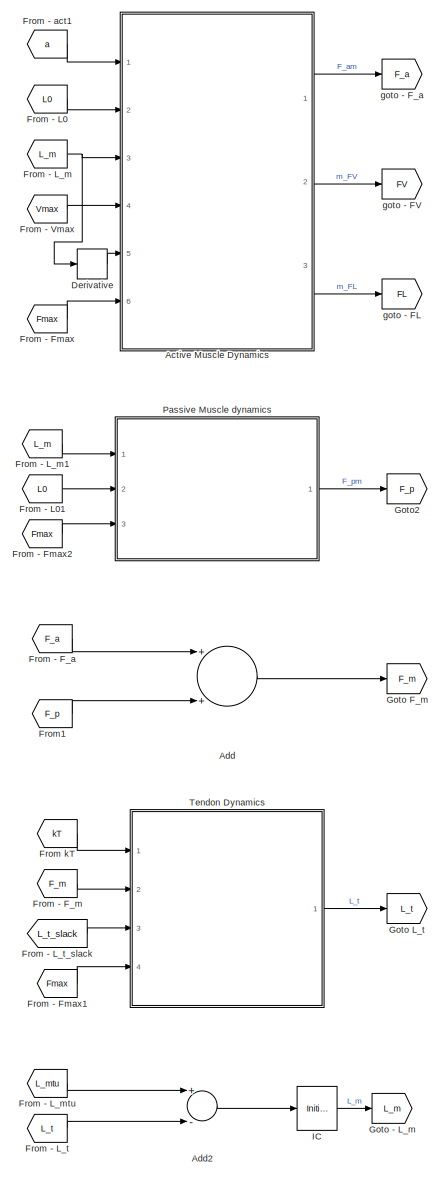
[diagram: root canvas - part 1/4, center side, full height]
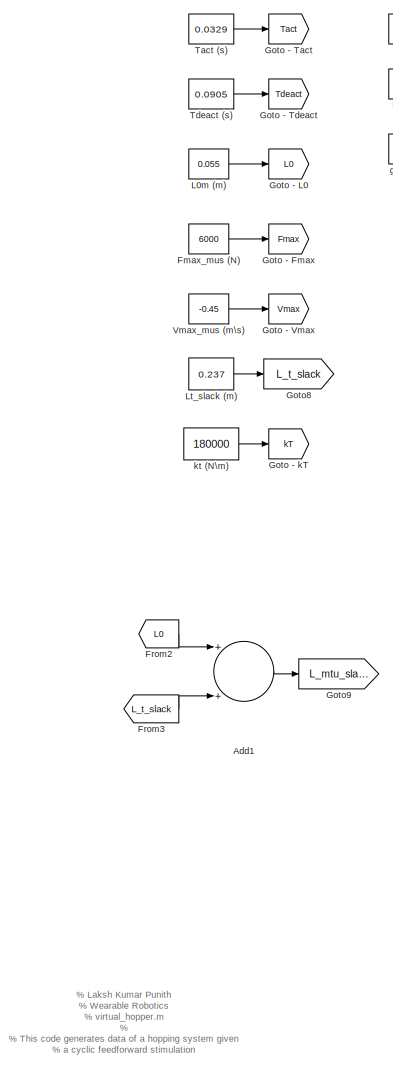
[diagram: root canvas - part 2/4, left side, full height]
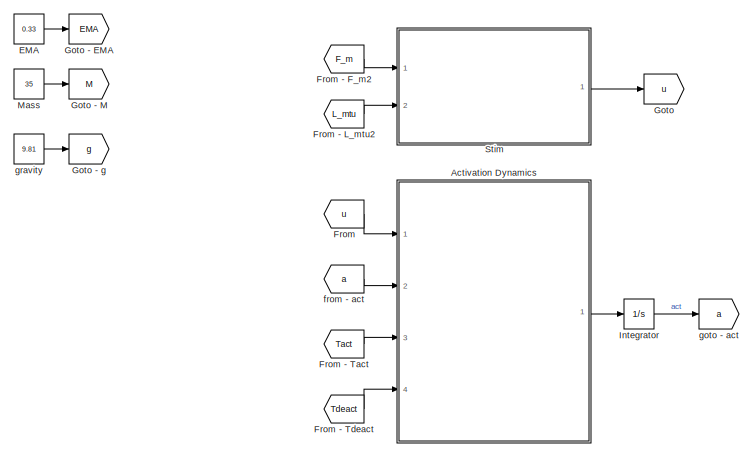
[diagram: root canvas - part 3/4, top left region]
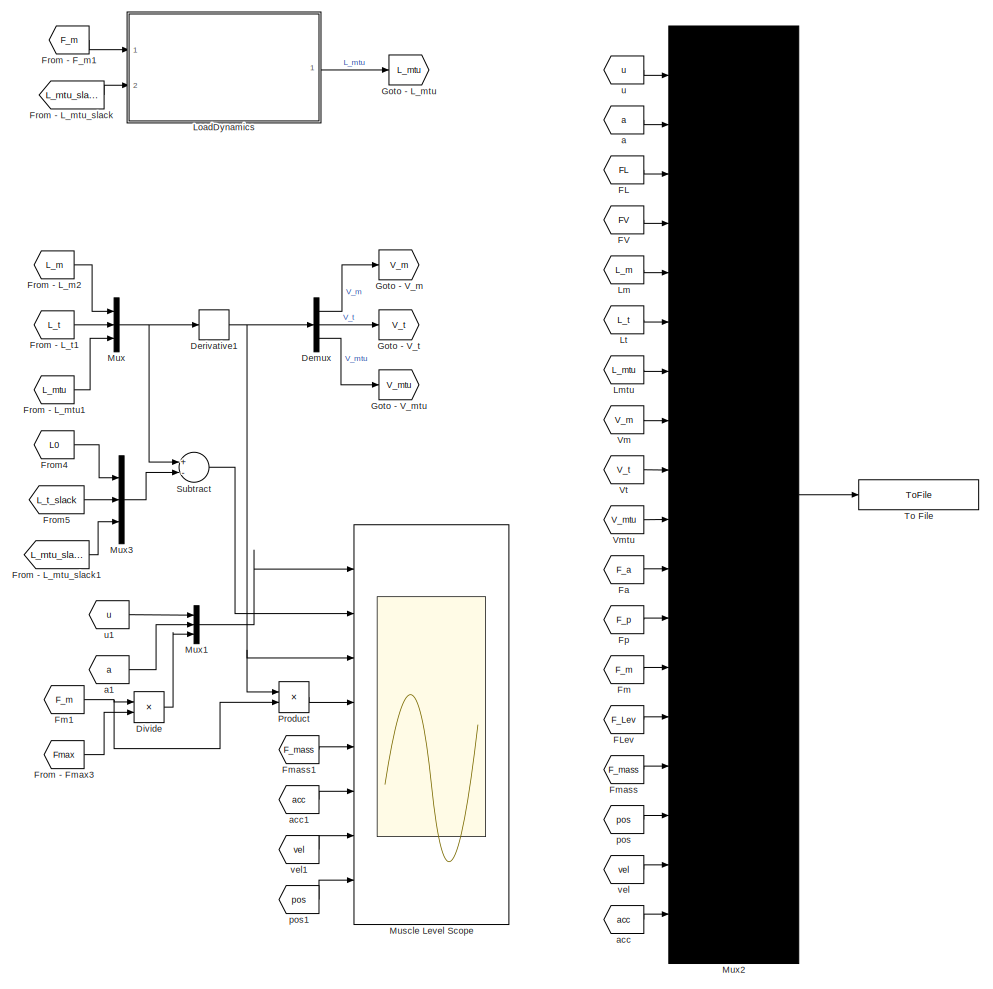
[diagram: root canvas - part 4/4, right side, full height]
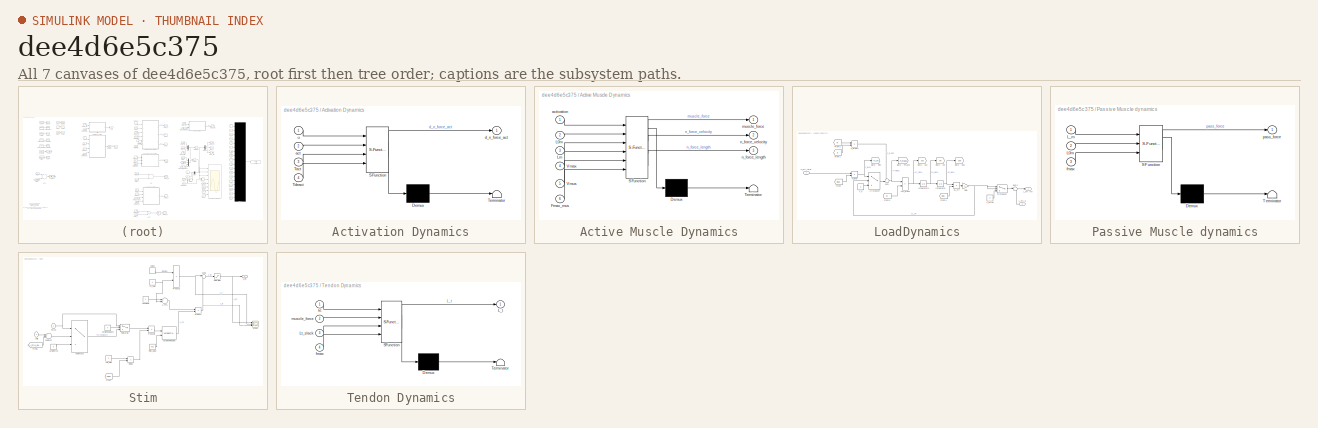
[diagram: thumbnail index - all 7 canvases of the model, root first then tree order]
MODEL slx_dee4d6e5c375
KIND model
CONFIG AbsTol = auto
CONFIG EnableMultiTasking = on
CONFIG FixedStep = 0.0005
CONFIG MaxStep = auto
CONFIG MinStep = auto
CONFIG RelTol = 1e-3
CONFIG SampleTimeConstraint = Unconstrained
CONFIG Solver = ode4
CONFIG SolverName = ode4
CONFIG StartTime = 0
CONFIG StopTime = 25
BLOCK [SubSystem] Activation Dynamics
  ErrorFcn = Stateflow.Translate.translate
  PermitHierarchicalResolution = ExplicitOnly
  Ports = [4, 1]
  RequestExecContextInheritance = off
  SFBlockType = MATLAB Function
  TreatAsAtomicUnit = on
  Variant = off
BLOCK [Demux] Activation Dynamics/ Demux 
  Outputs = 1
  Ports = [1, 1]
BLOCK [S-Function] Activation Dynamics/ SFunction 
  EnableBusSupport = on
  FunctionName = sf_sfun
  PortCounts = [4 2]
  Ports = [4, 2]
  SFcnIsStateOwnerBlock = off
  SFunctionDeploymentMode = off
  Tag = Stateflow S-Function virtual_hopper_feedback 4
BLOCK [Terminator] Activation Dynamics/ Terminator 
BLOCK [Inport] Activation Dynamics/Tact
  IconDisplay = Port number
  Port = 3
BLOCK [Inport] Activation Dynamics/Tdeact
  IconDisplay = Port number
  Port = 4
BLOCK [Inport] Activation Dynamics/act
  IconDisplay = Port number
  Port = 2
BLOCK [Outport] Activation Dynamics/d_n_force_act
  IconDisplay = Port number
BLOCK [Inport] Activation Dynamics/u
  IconDisplay = Port number
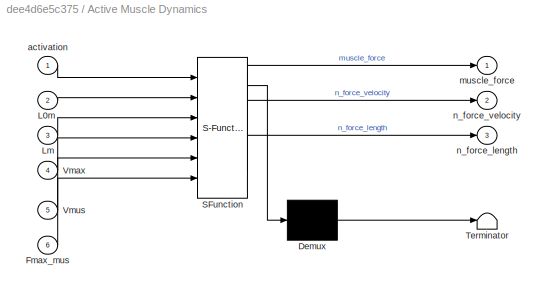
BLOCK [SubSystem] Active Muscle Dynamics
  ErrorFcn = Stateflow.Translate.translate
  PermitHierarchicalResolution = ExplicitOnly
  Ports = [6, 3]
  RequestExecContextInheritance = off
  SFBlockType = MATLAB Function
  Variant = off
BLOCK [Demux] Active Muscle Dynamics/ Demux 
  Outputs = 1
  Ports = [1, 1]
BLOCK [S-Function] Active Muscle Dynamics/ SFunction 
  EnableBusSupport = on
  FunctionName = sf_sfun
  PortCounts = [6 4]
  Ports = [6, 4]
  SFcnIsStateOwnerBlock = off
  SFunctionDeploymentMode = off
  Tag = Stateflow S-Function virtual_hopper_feedback 2
BLOCK [Terminator] Active Muscle Dynamics/ Terminator 
BLOCK [Inport] Active Muscle Dynamics/Fmax_mus
  IconDisplay = Port number
  Port = 6
BLOCK [Inport] Active Muscle Dynamics/L0m
  IconDisplay = Port number
  Port = 2
BLOCK [Inport] Active Muscle Dynamics/Lm
  IconDisplay = Port number
  Port = 3
BLOCK [Inport] Active Muscle Dynamics/Vmax
  IconDisplay = Port number
  Port = 4
BLOCK [Inport] Active Muscle Dynamics/Vmus
  IconDisplay = Port number
  Port = 5
BLOCK [Inport] Active Muscle Dynamics/activation
  IconDisplay = Port number
BLOCK [Outport] Active Muscle Dynamics/muscle_force
  IconDisplay = Port number
BLOCK [Outport] Active Muscle Dynamics/n_force_length
  IconDisplay = Port number
  Port = 3
BLOCK [Outport] Active Muscle Dynamics/n_force_velocity
  IconDisplay = Port number
  Port = 2
BLOCK [Sum] Add
  InputSameDT = off
  OutDataTypeStr = Inherit: Inherit via internal rule
  Ports = [2, 1]
  SaturateOnIntegerOverflow = off
BLOCK [Sum] Add1
  InputSameDT = off
  OutDataTypeStr = Inherit: Inherit via internal rule
  Ports = [2, 1]
  SaturateOnIntegerOverflow = off
BLOCK [Sum] Add2
  InputSameDT = off
  Inputs = +-
  OutDataTypeStr = Inherit: Inherit via internal rule
  Ports = [2, 1]
  SaturateOnIntegerOverflow = off
BLOCK [Demux] Demux
  DisplayOption = bar
  Outputs = 3
  Ports = [1, 3]
BLOCK [Derivative] Derivative
BLOCK [Derivative] Derivative1
BLOCK [Product] Divide
  InputSameDT = off
  Inputs = */
  OutDataTypeStr = Inherit: Inherit via internal rule
  Ports = [2, 1]
  RndMeth = Floor
  SaturateOnIntegerOverflow = off
BLOCK [Constant] EMA
  Value = 0.33
BLOCK [From] FL
  GotoTag = FL
BLOCK [From] FLev
  GotoTag = F_Lev
  TagVisibility = global
BLOCK [From] FV
  GotoTag = FV
BLOCK [From] Fa
  GotoTag = F_a
BLOCK [From] Fm
  GotoTag = F_m
BLOCK [From] Fm1
  GotoTag = F_m
BLOCK [From] Fmass
  GotoTag = F_mass
  TagVisibility = global
BLOCK [From] Fmass1
  GotoTag = F_mass
  TagVisibility = global
BLOCK [Constant] Fmax_mus (N)
  Value = 6000
BLOCK [From] Fp
  GotoTag = F_p
BLOCK [From] From
  GotoTag = u
BLOCK [From] From - F_a
  GotoTag = F_a
BLOCK [From] From - F_m
  GotoTag = F_m
BLOCK [From] From - F_m1
  GotoTag = F_m
BLOCK [From] From - F_m2
  GotoTag = F_m
BLOCK [From] From - Fmax
  GotoTag = Fmax
  TagVisibility = global
BLOCK [From] From - Fmax1
  GotoTag = Fmax
  TagVisibility = global
BLOCK [From] From - Fmax2
  GotoTag = Fmax
  TagVisibility = global
BLOCK [From] From - Fmax3
  GotoTag = Fmax
  TagVisibility = global
BLOCK [From] From - L0
  GotoTag = L0
  TagVisibility = global
BLOCK [From] From - L01
  GotoTag = L0
  TagVisibility = global
BLOCK [From] From - L_m
  GotoTag = L_m
BLOCK [From] From - L_m1
  GotoTag = L_m
BLOCK [From] From - L_m2
  GotoTag = L_m
BLOCK [From] From - L_mtu
  GotoTag = L_mtu
BLOCK [From] From - L_mtu1
  GotoTag = L_mtu
BLOCK [From] From - L_mtu2
  GotoTag = L_mtu
BLOCK [From] From - L_mtu_slack
  GotoTag = L_mtu_slack
  TagVisibility = global
BLOCK [From] From - L_mtu_slack1
  GotoTag = L_mtu_slack
  TagVisibility = global
BLOCK [From] From - L_t
  GotoTag = L_t
BLOCK [From] From - L_t1
  GotoTag = L_t
BLOCK [From] From - L_t_slack
  GotoTag = L_t_slack
  TagVisibility = global
BLOCK [From] From - Tact
  GotoTag = Tact
  TagVisibility = global
BLOCK [From] From - Tdeact
  GotoTag = Tdeact
  TagVisibility = global
BLOCK [From] From - Vmax
  GotoTag = Vmax
  TagVisibility = global
BLOCK [From] From - act1
  GotoTag = a
BLOCK [From] From kT
  GotoTag = kT
  TagVisibility = global
BLOCK [From] From1
  GotoTag = F_p
BLOCK [From] From2
  GotoTag = L0
  TagVisibility = global
BLOCK [From] From3
  GotoTag = L_t_slack
  TagVisibility = global
BLOCK [From] From4
  GotoTag = L0
  TagVisibility = global
BLOCK [From] From5
  GotoTag = L_t_slack
  TagVisibility = global
BLOCK [Goto] Goto
  GotoTag = u
BLOCK [Goto] Goto - EMA
  GotoTag = EMA
  TagVisibility = global
BLOCK [Goto] Goto - Fmax
  GotoTag = Fmax
  TagVisibility = global
BLOCK [Goto] Goto - L0
  GotoTag = L0
  TagVisibility = global
BLOCK [Goto] Goto - L_m
  GotoTag = L_m
BLOCK [Goto] Goto - L_mtu
  GotoTag = L_mtu
BLOCK [Goto] Goto - M
  GotoTag = M
  TagVisibility = global
BLOCK [Goto] Goto - Tact
  GotoTag = Tact
  TagVisibility = global
BLOCK [Goto] Goto - Tdeact
  GotoTag = Tdeact
  TagVisibility = global
BLOCK [Goto] Goto - V_m
  GotoTag = V_m
BLOCK [Goto] Goto - V_mtu
  GotoTag = V_mtu
BLOCK [Goto] Goto - V_t
  GotoTag = V_t
BLOCK [Goto] Goto - Vmax
  GotoTag = Vmax
  TagVisibility = global
BLOCK [Goto] Goto - g
  GotoTag = g
  TagVisibility = global
BLOCK [Goto] Goto - kT
  GotoTag = kT
  TagVisibility = global
BLOCK [Goto] Goto F_m
  GotoTag = F_m
BLOCK [Goto] Goto L_t
  GotoTag = L_t
BLOCK [Goto] Goto2
  GotoTag = F_p
BLOCK [Goto] Goto8
  GotoTag = L_t_slack
  TagVisibility = global
BLOCK [Goto] Goto9
  GotoTag = L_mtu_slack
  TagVisibility = global
BLOCK [InitialCondition] IC
  Value = 0.05
BLOCK [Integrator] Integrator
  Ports = [1, 1]
BLOCK [Constant] L0m (m)
  Value = 0.055
BLOCK [From] Lm
  GotoTag = L_m
BLOCK [From] Lmtu
  GotoTag = L_mtu
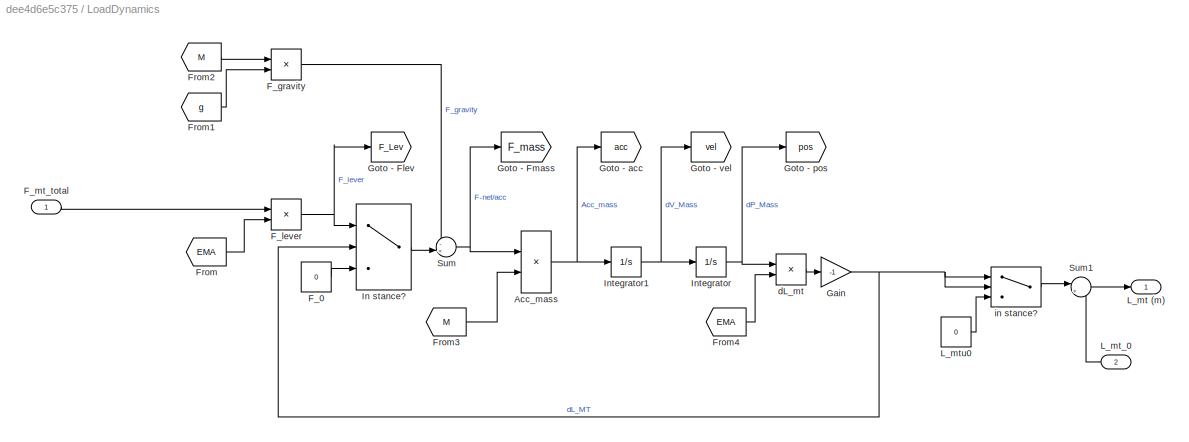
BLOCK [SubSystem] LoadDynamics
  Ports = [2, 1]
  RequestExecContextInheritance = off
  Variant = off
BLOCK [Product] LoadDynamics/Acc_mass
  InputSameDT = off
  Inputs = */
  OutDataTypeStr = Inherit: Inherit via internal rule
  Ports = [2, 1]
  RndMeth = Floor
  SaturateOnIntegerOverflow = off
BLOCK [Constant] LoadDynamics/F_0
  Value = 0
BLOCK [Product] LoadDynamics/F_gravity
  InputSameDT = off
  OutDataTypeStr = Inherit: Inherit via internal rule
  Ports = [2, 1]
  SaturateOnIntegerOverflow = off
BLOCK [Product] LoadDynamics/F_lever
  InputSameDT = off
  OutDataTypeStr = Inherit: Inherit via internal rule
  Ports = [2, 1]
  SaturateOnIntegerOverflow = off
BLOCK [Inport] LoadDynamics/F_mt_total
  IconDisplay = Port number
BLOCK [From] LoadDynamics/From
  GotoTag = EMA
  TagVisibility = global
BLOCK [From] LoadDynamics/From1
  GotoTag = g
  TagVisibility = global
BLOCK [From] LoadDynamics/From2
  GotoTag = M
  TagVisibility = global
BLOCK [From] LoadDynamics/From3
  GotoTag = M
  TagVisibility = global
BLOCK [From] LoadDynamics/From4
  GotoTag = EMA
  TagVisibility = global
BLOCK [Gain] LoadDynamics/Gain
  Gain = -1
  OutDataTypeStr = Inherit: Inherit via internal rule
  ParamDataTypeStr = Inherit: Inherit via internal rule
  SaturateOnIntegerOverflow = off
BLOCK [Goto] LoadDynamics/Goto - Flev
  GotoTag = F_Lev
  TagVisibility = global
BLOCK [Goto] LoadDynamics/Goto - Fmass
  GotoTag = F_mass
  TagVisibility = global
BLOCK [Goto] LoadDynamics/Goto - acc
  GotoTag = acc
  TagVisibility = global
BLOCK [Goto] LoadDynamics/Goto - pos
  GotoTag = pos
  TagVisibility = global
BLOCK [Goto] LoadDynamics/Goto - vel
  GotoTag = vel
  TagVisibility = global
BLOCK [Switch] LoadDynamics/In stance?
  InputSameDT = off
  SaturateOnIntegerOverflow = off
BLOCK [Integrator] LoadDynamics/Integrator
  InitialCondition = 0.05
  Ports = [1, 1]
BLOCK [Integrator] LoadDynamics/Integrator1
  Ports = [1, 1]
BLOCK [Outport] LoadDynamics/L_mt (m)
  IconDisplay = Port number
BLOCK [Inport] LoadDynamics/L_mt_0
  IconDisplay = Port number
  Port = 2
BLOCK [Constant] LoadDynamics/L_mtu0
  Value = 0
BLOCK [Sum] LoadDynamics/Sum
  IconShape = round
  InputSameDT = off
  Inputs = -+|
  OutDataTypeStr = Inherit: Inherit via internal rule
  Ports = [2, 1]
  SaturateOnIntegerOverflow = off
BLOCK [Sum] LoadDynamics/Sum1
  IconShape = round
  InputSameDT = off
  Inputs = |++
  OutDataTypeStr = Inherit: Inherit via internal rule
  Ports = [2, 1]
  SaturateOnIntegerOverflow = off
BLOCK [Product] LoadDynamics/dL_mt
  InputSameDT = off
  OutDataTypeStr = Inherit: Inherit via internal rule
  Ports = [2, 1]
  SaturateOnIntegerOverflow = off
BLOCK [Switch] LoadDynamics/in stance? 
  InputSameDT = off
  SaturateOnIntegerOverflow = off
BLOCK [From] Lt
  GotoTag = L_t
BLOCK [Constant] Lt_slack (m)
  Value = 0.237
BLOCK [Constant] Mass
  Value = 35
BLOCK [Scope] Muscle Level Scope
  NumInputPorts = 8
  Ports = [8]
  ScopeSpecificationString = Simulink.scopes.TimeScopeBlockCfg('CurrentConfiguration', extmgr.ConfigurationSet(extmgr.Configuration('Core','General UI',true),extmgr.Configuration('Core','Source UI',true),extmgr.Configuration('Sources','WiredSimulink',true),extmgr.Configuration('Visuals','Time Domain',true,'SerializedDisplays',{struct('MinYLimReal','-0.08693','MaxYLimReal','0.78236','YLabelReal','','MinYLimMag','0.00000','MaxY...<+7493ch>
BLOCK [Mux] Mux
  DisplayOption = bar
  Inputs = 3
  Ports = [3, 1]
BLOCK [Mux] Mux1
  DisplayOption = bar
  Inputs = 3
  Ports = [3, 1]
BLOCK [Mux] Mux2
  DisplayOption = signals
  Inputs = 18
  Ports = [18, 1]
BLOCK [Mux] Mux3
  DisplayOption = bar
  Inputs = 3
  Ports = [3, 1]
BLOCK [SubSystem] Passive Muscle dynamics
  ErrorFcn = Stateflow.Translate.translate
  PermitHierarchicalResolution = ExplicitOnly
  Ports = [3, 1]
  RequestExecContextInheritance = off
  SFBlockType = MATLAB Function
  Variant = off
BLOCK [Demux] Passive Muscle dynamics/ Demux 
  Outputs = 1
  Ports = [1, 1]
BLOCK [S-Function] Passive Muscle dynamics/ SFunction 
  EnableBusSupport = on
  FunctionName = sf_sfun
  PortCounts = [3 2]
  Ports = [3, 2]
  SFcnIsStateOwnerBlock = off
  SFunctionDeploymentMode = off
  Tag = Stateflow S-Function virtual_hopper_feedback 5
BLOCK [Terminator] Passive Muscle dynamics/ Terminator 
BLOCK [Inport] Passive Muscle dynamics/L0m
  IconDisplay = Port number
  Port = 2
BLOCK [Inport] Passive Muscle dynamics/L_m
  IconDisplay = Port number
BLOCK [Inport] Passive Muscle dynamics/fmax
  IconDisplay = Port number
  Port = 3
BLOCK [Outport] Passive Muscle dynamics/pass_force
  IconDisplay = Port number
BLOCK [Product] Product
  InputSameDT = off
  OutDataTypeStr = Inherit: Inherit via internal rule
  Ports = [2, 1]
  RndMeth = Floor
  SaturateOnIntegerOverflow = off
BLOCK [SubSystem] Stim
  Ports = [2, 1]
  RequestExecContextInheritance = off
  Variant = off
BLOCK [Sum] Stim/1 - FF%
  InputSameDT = off
  Inputs = +-
  OutDataTypeStr = Inherit: Inherit via internal rule
  Ports = [2, 1]
  SaturateOnIntegerOverflow = off
BLOCK [Constant] Stim/Aerial Feedback
  Value = 0
BLOCK [Constant] Stim/Aerial Force
  Value = 0
BLOCK [Constant] Stim/Constant1
BLOCK [Product] Stim/Divide
  InputSameDT = off
  Inputs = */
  OutDataTypeStr = Inherit: Inherit via internal rule
  Ports = [2, 1]
  RndMeth = Floor
  SaturateOnIntegerOverflow = off
BLOCK [Switch] Stim/FB in Aerial
  Criteria = u2 > Threshold
  InputSameDT = off
  SaturateOnIntegerOverflow = off
BLOCK [Constant] Stim/FB_Gain
  Value = 0
BLOCK [Constant] Stim/FF_Gain
BLOCK [Inport] Stim/Force
  IconDisplay = Port number
BLOCK [From] Stim/From
  GotoTag = Fmax
  TagVisibility = global
BLOCK [From] Stim/From1
  GotoTag = L_mtu_slack
  TagVisibility = global
BLOCK [Switch] Stim/In stance? 2
  Criteria = u2 > Threshold
  InputSameDT = off
  SaturateOnIntegerOverflow = off
BLOCK [Inport] Stim/Lmtu
  IconDisplay = Port number
  Port = 2
BLOCK [Product] Stim/Product
  InputSameDT = off
  OutDataTypeStr = Inherit: Inherit via internal rule
  Ports = [2, 1]
  RndMeth = Floor
  SaturateOnIntegerOverflow = off
BLOCK [Product] Stim/Product2
  InputSameDT = off
  OutDataTypeStr = Inherit: Inherit via internal rule
  Ports = [2, 1]
  RndMeth = Floor
  SaturateOnIntegerOverflow = off
BLOCK [Product] Stim/Product3
  InputSameDT = off
  OutDataTypeStr = Inherit: Inherit via internal rule
  Ports = [2, 1]
  RndMeth = Floor
  SaturateOnIntegerOverflow = off
BLOCK [Saturate] Stim/Saturation
  InputPortMap = u0
  LowerLimit = 0
  Ports = [1, 1]
  UpperLimit = 1
BLOCK [Scope] Stim/Scope
  NumInputPorts = 3
  Ports = [3]
  ScopeSpecificationString = Simulink.scopes.TimeScopeBlockCfg('CurrentConfiguration', extmgr.ConfigurationSet(extmgr.Configuration('Core','General UI',true),extmgr.Configuration('Core','Source UI',true),extmgr.Configuration('Sources','WiredSimulink',true,'DataLoggingVariableName','ScopeData1'),extmgr.Configuration('Visuals','Time Domain',true,'SerializedDisplays',{struct('MinYLimReal','-0.125','MaxYLimReal','1.125','YLabelRe...<+2738ch>
BLOCK [Sum] Stim/Subtract
  InputSameDT = off
  Inputs = +-
  OutDataTypeStr = Inherit: Inherit via internal rule
  Ports = [2, 1]
  SaturateOnIntegerOverflow = off
BLOCK [Sum] Stim/Sum1
  IconShape = round
  InputSameDT = off
  Inputs = |++
  OutDataTypeStr = Inherit: Inherit via internal rule
  Ports = [2, 1]
  SaturateOnIntegerOverflow = off
BLOCK [Constant] Stim/Time_delay
  Value = 0.02
BLOCK [VariableTransportDelay] Stim/Variable Time Delay
  MaximumDelay = 10
  MaximumPoints = 40960
  Ports = [2, 1]
BLOCK [DiscretePulseGenerator] Stim/pulse
  Period = 0.4
  PhaseDelay = 0.1
  Ports = [0, 1]
  PulseType = Time based
  PulseWidth = 10
BLOCK [Outport] Stim/u_tot
  IconDisplay = Port number
BLOCK [Sum] Subtract
  InputSameDT = off
  Inputs = +-
  OutDataTypeStr = Inherit: Inherit via internal rule
  Ports = [2, 1]
  SaturateOnIntegerOverflow = off
BLOCK [Constant] Tact (s)
  Value = 0.0329
  VectorParams1D = off
BLOCK [Constant] Tdeact (s)
  Value = 0.0905
BLOCK [SubSystem] Tendon Dynamics
  ErrorFcn = Stateflow.Translate.translate
  PermitHierarchicalResolution = ExplicitOnly
  Ports = [4, 1]
  RequestExecContextInheritance = off
  SFBlockType = MATLAB Function
  Variant = off
BLOCK [Demux] Tendon Dynamics/ Demux 
  Outputs = 1
  Ports = [1, 1]
BLOCK [S-Function] Tendon Dynamics/ SFunction 
  EnableBusSupport = on
  FunctionName = sf_sfun
  PortCounts = [4 2]
  Ports = [4, 2]
  SFcnIsStateOwnerBlock = off
  SFunctionDeploymentMode = off
  Tag = Stateflow S-Function virtual_hopper_feedback 3
BLOCK [Terminator] Tendon Dynamics/ Terminator 
BLOCK [Outport] Tendon Dynamics/L_t
  IconDisplay = Port number
BLOCK [Inport] Tendon Dynamics/Lt_slack
  IconDisplay = Port number
  Port = 3
BLOCK [Inport] Tendon Dynamics/fmax
  IconDisplay = Port number
  Port = 4
BLOCK [Inport] Tendon Dynamics/kt
  IconDisplay = Port number
BLOCK [Inport] Tendon Dynamics/muscle_force
  IconDisplay = Port number
  Port = 2
BLOCK [ToFile] To File
  Filename = signal_data_output
  MatrixName = data
  Ports = [1]
  SaveFormat = Timeseries
BLOCK [From] Vm
  GotoTag = V_m
BLOCK [Constant] Vmax_mus (m\s)
  Value = -0.45
BLOCK [From] Vmtu
  GotoTag = V_mtu
BLOCK [From] Vt
  GotoTag = V_t
BLOCK [From] a
  GotoTag = a
BLOCK [From] a1
  GotoTag = a
BLOCK [From] acc
  GotoTag = acc
  TagVisibility = global
BLOCK [From] acc1
  GotoTag = acc
  TagVisibility = global
BLOCK [From] from - act
  GotoTag = a
BLOCK [Goto] goto - FL
  GotoTag = FL
BLOCK [Goto] goto - FV
  GotoTag = FV
BLOCK [Goto] goto - F_a
  GotoTag = F_a
BLOCK [Goto] goto - act
  GotoTag = a
BLOCK [Constant] gravity
  Value = 9.81
BLOCK [Constant] kt (N\m)
  Value = 180000
BLOCK [From] pos
  GotoTag = pos
  TagVisibility = global
BLOCK [From] pos1
  GotoTag = pos
  TagVisibility = global
BLOCK [From] u
  GotoTag = u
BLOCK [From] u1
  GotoTag = u
BLOCK [From] vel
  GotoTag = vel
  TagVisibility = global
BLOCK [From] vel1
  GotoTag = vel
  TagVisibility = global
ANNOTATION (root): % Laksh Kumar Punith % Wearable Robotics % virtual_hopper.m % % This code generates data of a hopping system given % a cyclic feedforward stimulation
LINE Activation Dynamics:1 -> Integrator:1
LINE Active Muscle Dynamics:1 -> goto - F_a:1
LINE Active Muscle Dynamics:2 -> goto - FV:1
LINE Active Muscle Dynamics:3 -> goto - FL:1
LINE Add1:1 -> Goto9:1
LINE Add2:1 -> IC:1
LINE Add:1 -> Goto F_m:1
LINE Demux:1 -> Goto - V_m:1
LINE Demux:2 -> Goto - V_t:1
LINE Demux:3 -> Goto - V_mtu:1
NET Derivative1:1 -> Demux:1, Muscle Level Scope:3, Product:1
LINE Derivative:1 -> Active Muscle Dynamics:5
LINE Divide:1 -> Mux1:3
LINE EMA:1 -> Goto - EMA:1
LINE FL:1 -> Mux2:3
LINE FLev:1 -> Mux2:14
LINE FV:1 -> Mux2:4
LINE Fa:1 -> Mux2:11
NET Fm1:1 -> Divide:1, Product:2
LINE Fm:1 -> Mux2:13
LINE Fmass1:1 -> Muscle Level Scope:5
LINE Fmass:1 -> Mux2:15
LINE Fmax_mus (N):1 -> Goto - Fmax:1
LINE Fp:1 -> Mux2:12
LINE From - F_a:1 -> Add:1
LINE From - F_m1:1 -> LoadDynamics:1
LINE From - F_m2:1 -> Stim:1
LINE From - F_m:1 -> Tendon Dynamics:2
LINE From - Fmax1:1 -> Tendon Dynamics:4
LINE From - Fmax2:1 -> Passive Muscle dynamics:3
LINE From - Fmax3:1 -> Divide:2
LINE From - Fmax:1 -> Active Muscle Dynamics:6
LINE From - L01:1 -> Passive Muscle dynamics:2
LINE From - L0:1 -> Active Muscle Dynamics:2
LINE From - L_m1:1 -> Passive Muscle dynamics:1
LINE From - L_m2:1 -> Mux:1
NET From - L_m:1 -> Active Muscle Dynamics:3, Derivative:1
LINE From - L_mtu1:1 -> Mux:3
LINE From - L_mtu2:1 -> Stim:2
LINE From - L_mtu:1 -> Add2:1
LINE From - L_mtu_slack1:1 -> Mux3:3
LINE From - L_mtu_slack:1 -> LoadDynamics:2
LINE From - L_t1:1 -> Mux:2
LINE From - L_t:1 -> Add2:2
LINE From - L_t_slack:1 -> Tendon Dynamics:3
LINE From - Tact:1 -> Activation Dynamics:3
LINE From - Tdeact:1 -> Activation Dynamics:4
LINE From - Vmax:1 -> Active Muscle Dynamics:4
LINE From - act1:1 -> Active Muscle Dynamics:1
LINE From kT:1 -> Tendon Dynamics:1
LINE From1:1 -> Add:2
LINE From2:1 -> Add1:1
LINE From3:1 -> Add1:2
LINE From4:1 -> Mux3:1
LINE From5:1 -> Mux3:2
LINE From:1 -> Activation Dynamics:1
LINE IC:1 -> Goto - L_m:1
LINE Integrator:1 -> goto - act:1
LINE L0m (m):1 -> Goto - L0:1
LINE Lm:1 -> Mux2:5
LINE Lmtu:1 -> Mux2:7
NET LoadDynamics/Acc_mass:1 -> LoadDynamics/Goto - acc:1, LoadDynamics/Integrator1:1
LINE LoadDynamics/F_0:1 -> LoadDynamics/In stance?:3
LINE LoadDynamics/F_gravity:1 -> LoadDynamics/Sum:1
NET LoadDynamics/F_lever:1 -> LoadDynamics/Goto - Flev:1, LoadDynamics/In stance?:1
LINE LoadDynamics/F_mt_total:1 -> LoadDynamics/F_lever:1
LINE LoadDynamics/From1:1 -> LoadDynamics/F_gravity:2
LINE LoadDynamics/From2:1 -> LoadDynamics/F_gravity:1
LINE LoadDynamics/From3:1 -> LoadDynamics/Acc_mass:2
LINE LoadDynamics/From4:1 -> LoadDynamics/dL_mt:2
LINE LoadDynamics/From:1 -> LoadDynamics/F_lever:2
NET LoadDynamics/Gain:1 -> LoadDynamics/In stance?:2, LoadDynamics/in stance? :1, LoadDynamics/in stance? :2
LINE LoadDynamics/In stance?:1 -> LoadDynamics/Sum:2
NET LoadDynamics/Integrator1:1 -> LoadDynamics/Goto - vel:1, LoadDynamics/Integrator:1
NET LoadDynamics/Integrator:1 -> LoadDynamics/Goto - pos:1, LoadDynamics/dL_mt:1
LINE LoadDynamics/L_mt_0:1 -> LoadDynamics/Sum1:2
LINE LoadDynamics/L_mtu0:1 -> LoadDynamics/in stance? :3
LINE LoadDynamics/Sum1:1 -> LoadDynamics/L_mt (m):1
NET LoadDynamics/Sum:1 -> LoadDynamics/Acc_mass:1, LoadDynamics/Goto - Fmass:1
LINE LoadDynamics/dL_mt:1 -> LoadDynamics/Gain:1
LINE LoadDynamics/in stance? :1 -> LoadDynamics/Sum1:1
LINE LoadDynamics:1 -> Goto - L_mtu:1
LINE Lt:1 -> Mux2:6
LINE Lt_slack (m):1 -> Goto8:1
LINE Mass:1 -> Goto - M:1
LINE Mux1:1 -> Muscle Level Scope:1
LINE Mux2:1 -> To File:1
LINE Mux3:1 -> Subtract:2
NET Mux:1 -> Derivative1:1, Subtract:1
LINE Passive Muscle dynamics:1 -> Goto2:1
LINE Product:1 -> Muscle Level Scope:4
LINE Stim/1 - FF%:1 -> Stim/Product:1
LINE Stim/Aerial Feedback:1 -> Stim/FB in Aerial:2
LINE Stim/Aerial Force:1 -> Stim/In stance? 2:3
LINE Stim/Constant1:1 -> Stim/1 - FF%:1
LINE Stim/Divide:1 -> Stim/Product3:2
LINE Stim/FB in Aerial:1 -> Stim/Product3:1
LINE Stim/FB_Gain:1 -> Stim/Divide:1
NET Stim/FF_Gain:1 -> Stim/1 - FF%:2, Stim/Product2:2
NET Stim/Force:1 -> Stim/FB in Aerial:1, Stim/In stance? 2:1
LINE Stim/From1:1 -> Stim/Subtract:2
LINE Stim/From:1 -> Stim/Divide:2
LINE Stim/In stance? 2:1 -> Stim/FB in Aerial:3
LINE Stim/Lmtu:1 -> Stim/Subtract:1
NET Stim/Product2:1 -> Stim/Scope:2, Stim/Sum1:1
LINE Stim/Product3:1 -> Stim/Variable Time Delay:1
NET Stim/Product:1 -> Stim/Scope:3, Stim/Sum1:2
NET Stim/Saturation:1 -> Stim/Scope:1, Stim/u_tot:1
LINE Stim/Subtract:1 -> Stim/In stance? 2:2
LINE Stim/Sum1:1 -> Stim/Saturation:1
LINE Stim/Time_delay:1 -> Stim/Variable Time Delay:2
LINE Stim/Variable Time Delay:1 -> Stim/Product:2
LINE Stim/pulse:1 -> Stim/Product2:1
LINE Stim:1 -> Goto:1
LINE Subtract:1 -> Muscle Level Scope:2
LINE Tact (s):1 -> Goto - Tact:1
LINE Tdeact (s):1 -> Goto - Tdeact:1
LINE Tendon Dynamics:1 -> Goto L_t:1
LINE Vm:1 -> Mux2:8
LINE Vmax_mus (m\s):1 -> Goto - Vmax:1
LINE Vmtu:1 -> Mux2:10
LINE Vt:1 -> Mux2:9
LINE a1:1 -> Mux1:2
LINE a:1 -> Mux2:2
LINE acc1:1 -> Muscle Level Scope:6
LINE acc:1 -> Mux2:18
LINE from - act:1 -> Activation Dynamics:2
LINE gravity:1 -> Goto - g:1
LINE kt (N\m):1 -> Goto - kT:1
LINE pos1:1 -> Muscle Level Scope:8
LINE pos:1 -> Mux2:16
LINE u1:1 -> Mux1:1
LINE u:1 -> Mux2:1
LINE vel1:1 -> Muscle Level Scope:7
LINE vel:1 -> Mux2:17
note: NET lines group one-source signal fan-out (src -> all destinations, sorted); 1:1 wires keep LINE
CHART Active Muscle Dynamics states=1 transitions=1
  STATE_LABEL 'eML_blk_kernel()'
  STATE_LABEL 'SCRIPT:\nfunction [muscle_force, n_force_velocity, n_force_length]  =...\n    muscle_dynamics(activation,L0m,Lm,Vmax,Vmus,Fmax_mus)\n%#codegen\n\n    %Hill Type Muscle F-V relationship.  Returns a normalized force-velocity value\n    if (Vmus<Vmax)\n        n_force_velocity=0;\n    else\n        if (Vmus >= Vmax && Vmus < 0)\n            n_force_velocity = ((1-(Vmus/Vmax))/(1+(Vmus/0.17/Vmax)));\n        els...<+482ch>'
CHART Tendon Dynamics states=1 transitions=1
  STATE_LABEL 'eML_blk_kernel()'
  STATE_LABEL 'SCRIPT:\nfunction L_t = L_tendon(kt,muscle_force,Lt_slack,fmax)\n%#codegen\n%Lichtwark, G.A. and Wilson, A.M., 2008. Journal of theoretical biology, 252(4), pp.662-673.\n%Total tendon length\ndL_t = (muscle_force + (fmax*log((-9*exp(-(20*muscle_force)/fmax)) + 10))/20)/kt;\nL_t = dL_t + Lt_slack ;\n\nend\n'
CHART Activation Dynamics states=1 transitions=1
  STATE_LABEL 'eML_blk_kernel()'
  STATE_LABEL 'SCRIPT:\nfunction d_n_force_act = d_n_force_act(u,act,Tact,Tdeact)\n%#codegen    \n%Rate of change of activation\n%Equation is taken from Zajac (1989) Eq. 1\n    B=Tact/Tdeact;\n    d_n_force_act= u/Tact - (1/Tact*(B+(1-B)*u))*act;\nend\n'
CHART Passive Muscle dynamics states=1 transitions=1
  STATE_LABEL 'eML_blk_kernel()'
  STATE_LABEL 'SCRIPT:\nfunction pass_force = pmuscle_dynamics(L_m, L0m,fmax)\n%#codegen\n%passive CE F_L taken from Rubenson et. al.\n\n%Passive muscle force\nA = 2.38*10^(-2);\nb = 5.31;\n\nif L_m > 0    \n    pass_force= fmax*A*exp(b*((L_m/L0m)-1));\nelse\n    pass_force=0;\nend\n\n\nend'
